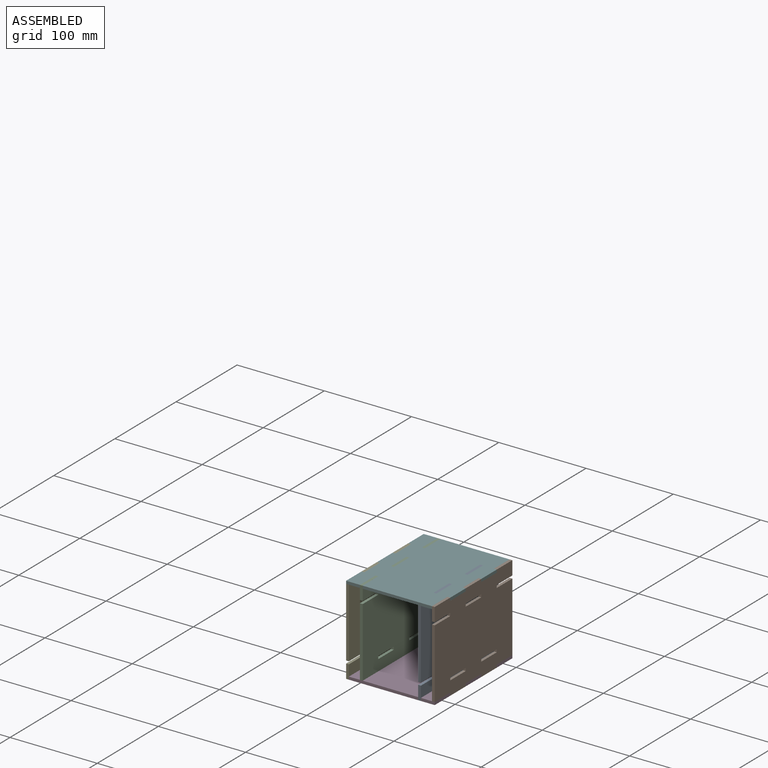
[diagram: assembled view]
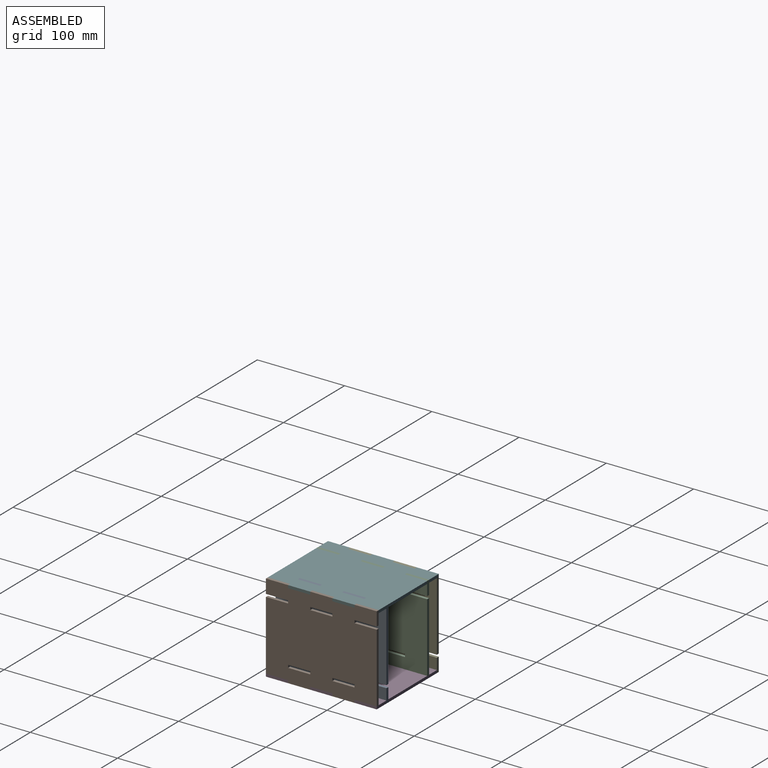
[diagram: assembled view, second angle]
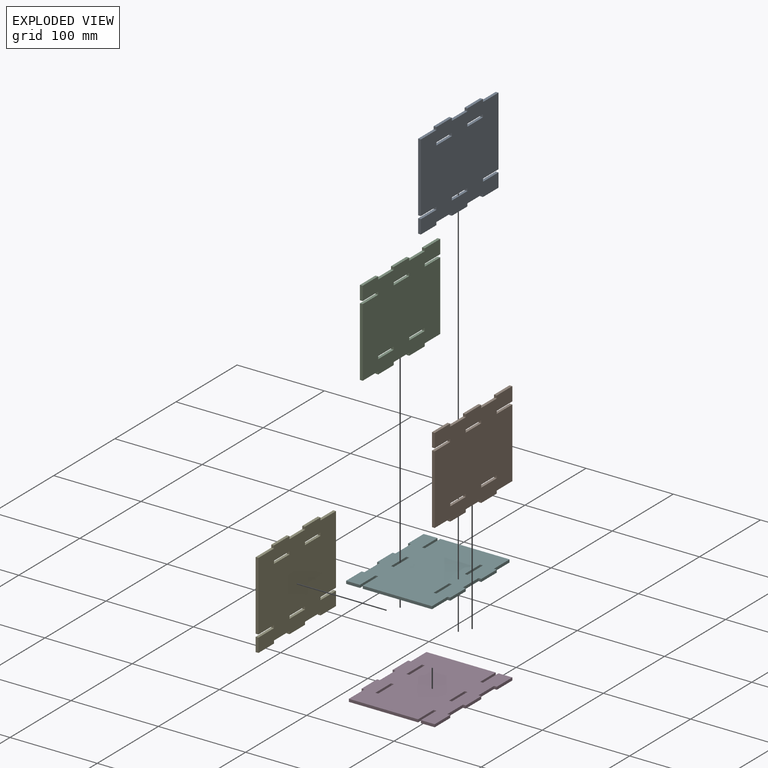
[diagram: exploded view]
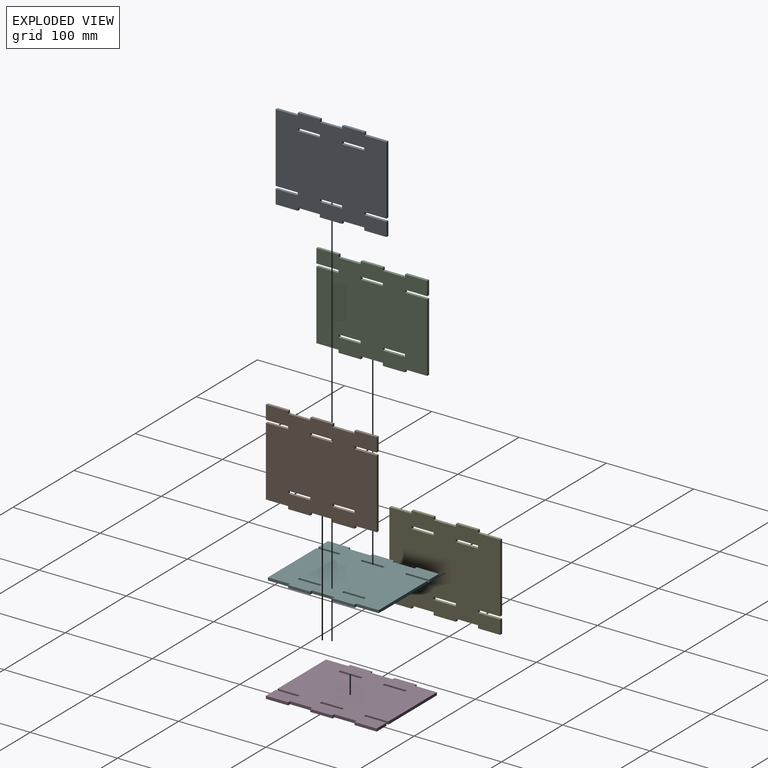
[diagram: exploded view, second angle]
ASSEMBLY  parts=6 mates=5
PART A: 42 faces, bbox 3.2x127x101.6 mm
  f0: plane 25.4x3.18mm, normal (0,0,-1), area 80.6mm2, adj f1,f39,f40,f41
  f1: plane 79.38x3.18mm, normal (0,1,0), area 252mm2, adj f0,f2,f40,f41
  f2: plane 25.4x3.18mm, normal (0,0,1), area 80.6mm2, adj f1,f3,f40,f41
  f3: plane 3.18x3.18mm, normal (0,1,0), area 10.1mm2, adj f2,f4,f40,f41
  f4: plane 25.4x3.18mm, normal (0,0,1), area 80.6mm2, adj f3,f5,f40,f41
  f5: plane 3.18x3.18mm, normal (0,-1,0), area 10.1mm2, adj f4,f6,f40,f41
  f6: plane 25.4x3.18mm, normal (0,0,1), area 80.6mm2, adj f5,f7,f40,f41
  f7: plane 3.18x3.18mm, normal (0,1,0), area 10.1mm2, adj f6,f8,f40,f41
  f8: plane 25.4x3.18mm, normal (0,0,1), area 80.6mm2, adj f7,f9,f40,f41
  f9: plane 3.18x3.18mm, normal (0,-1,0), area 10.1mm2, adj f8,f10,f40,f41
  f10: plane 25.4x3.18mm, normal (0,0,1), area 80.6mm2, adj f9,f11,f40,f41
  f11: plane 79.38x3.18mm, normal (0,-1,0), area 252mm2, adj f10,f12,f40,f41
  f12: plane 25.4x3.18mm, normal (0,0,-1), area 80.6mm2, adj f11,f13,f40,f41
  f13: plane 3.18x3.18mm, normal (0,-1,0), area 10.1mm2, adj f12,f14,f40,f41
  f14: plane 25.4x3.18mm, normal (0,0,1), area 80.6mm2, adj f13,f15,f40,f41
  f15: plane 15.88x3.18mm, normal (0,-1,0), area 50.4mm2, adj f14,f16,f40,f41
  f16: plane 25.4x3.18mm, normal (0,0,-1), area 80.6mm2, adj f15,f17,f40,f41
  f17: plane 3.18x3.18mm, normal (0,1,0), area 10.1mm2, adj f16,f18,f40,f41
  f18: plane 25.4x3.18mm, normal (0,0,-1), area 80.6mm2, adj f17,f19,f40,f41
  f19: plane 3.18x3.18mm, normal (0,-1,0), area 10.1mm2, adj f18,f20,f40,f41
  f20: plane 25.4x3.18mm, normal (0,0,-1), area 80.6mm2, adj f19,f21,f40,f41
  f21: plane 3.18x3.18mm, normal (0,1,0), area 10.1mm2, adj f20,f22,f40,f41
  f22: plane 25.4x3.18mm, normal (0,0,-1), area 80.6mm2, adj f21,f23,f40,f41
  f23: plane 3.18x3.18mm, normal (0,-1,0), area 10.1mm2, adj f22,f24,f40,f41
  f24: plane 25.4x3.18mm, normal (0,0,-1), area 80.6mm2, adj f23,f25,f40,f41
  f25: plane 15.88x3.18mm, normal (0,1,0), area 50.4mm2, adj f24,f26,f40,f41
  f26: plane 25.4x3.18mm, normal (0,0,1), area 80.6mm2, adj f25,f39,f40,f41
  f27: plane 3.18x3.18mm, normal (0,-1,0), area 10.1mm2, adj f28,f36,f40,f41
  f28: plane 25.4x3.18mm, normal (0,0,1), area 80.6mm2, adj f27,f29,f40,f41
  f29: plane 3.18x3.18mm, normal (0,1,0), area 10.1mm2, adj f28,f36,f40,f41
  f30: plane 3.18x3.18mm, normal (0,1,0), area 10.1mm2, adj f31,f37,f40,f41
  f31: plane 25.4x3.18mm, normal (0,0,-1), area 80.6mm2, adj f30,f32,f40,f41
  f32: plane 3.18x3.18mm, normal (0,-1,0), area 10.1mm2, adj f31,f37,f40,f41
  f33: plane 3.18x3.18mm, normal (0,1,0), area 10.1mm2, adj f34,f38,f40,f41
  f34: plane 25.4x3.18mm, normal (0,0,-1), area 80.6mm2, adj f33,f35,f40,f41
  f35: plane 3.18x3.18mm, normal (0,-1,0), area 10.1mm2, adj f34,f38,f40,f41
  f36: plane 25.4x3.18mm, normal (0,0,-1), area 80.6mm2, adj f27,f29,f40,f41
  f37: plane 25.4x3.18mm, normal (0,0,1), area 80.6mm2, adj f30,f32,f40,f41
  f38: plane 25.4x3.18mm, normal (0,0,1), area 80.6mm2, adj f33,f35,f40,f41
  f39: plane 3.18x3.18mm, normal (0,1,0), area 10.1mm2, adj f0,f26,f40,f41
  f40: plane 127x101.6mm, normal (1,0,0), area 12096.8mm2, adj f0,f1,f2,f3,f4,f5,f6,f7
  f41: plane 127x101.6mm, normal (-1,0,0), area 12096.8mm2, adj f0,f1,f2,f3,f4,f5,f6,f7
PART B: same geometry as A
PART C: same geometry as A
PART D: same geometry as A
PART E: same geometry as A
PART F: same geometry as A
PLACE A t=(-1.8,-57.89,-42.19)mm
PLACE B rot(axis=(1,0,0),180deg) t=(14.07,69.11,59.41)mm
PLACE C rot(axis=(1,0,0),180deg) t=(-68.48,69.11,59.41)mm
PLACE D rot(axis=(0,-1,0),90deg) t=(17.25,-57.89,-42.19)mm
PLACE E t=(-84.35,-57.89,-42.19)mm
PLACE F rot(axis=(0,1,0),90deg) t=(-84.35,-57.89,59.41)mm
MATE fastened D.f40 <-> B.f6  axis (0,0,1) through (17.25,5.61,-39.02)mm
MATE fastened F.f40 <-> B.f18  axis (0,0,-1) through (17.25,31.01,56.23)mm
MATE fastened F.f41 <-> C.f24  axis (0,0,1) through (-65.3,-45.19,59.41)mm
MATE fastened E.f41 <-> D.f8  axis (-1,0,0) through (-84.35,-19.79,-39.02)mm
MATE fastened D.f41 <-> A.f16  axis (0,0,-1) through (1.37,-45.19,-42.19)mm
